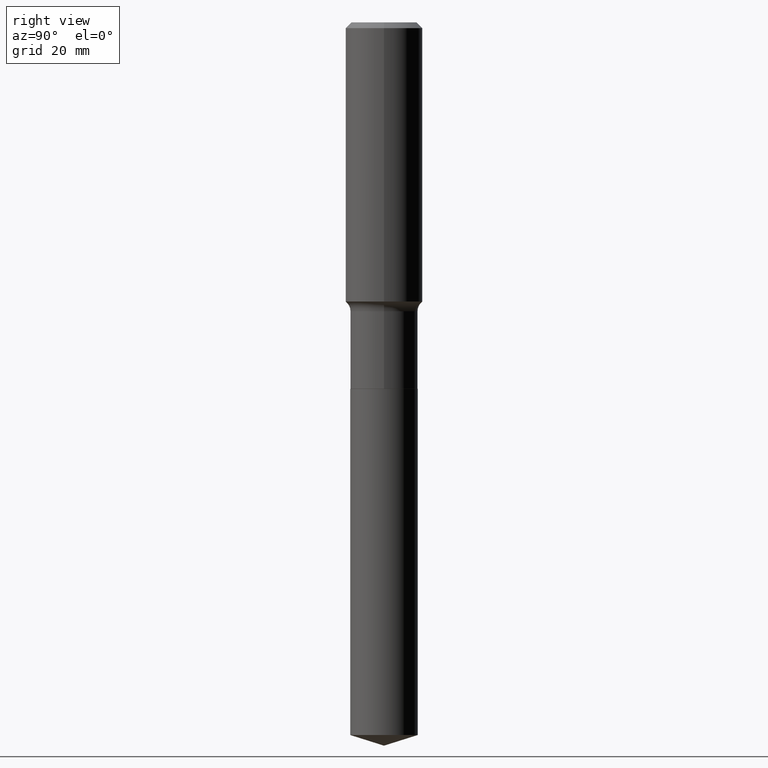
[diagram: clean part render]
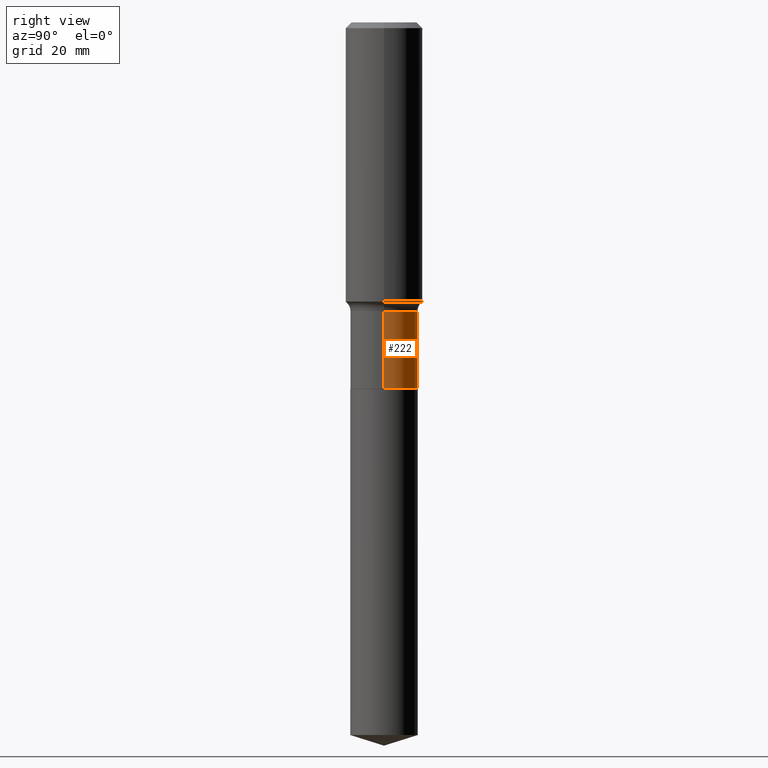
[diagram: same view with one face highlighted and labeled with its STEP entity id]
A machine part, right view. The second image highlights one B-rep face of the part: STEP entity #222.
In plain terms, the highlighted cylindrical surface (edge-blend (fillet) strip) has radius 5.5562 mm, axis along (-0, 0, 1).
Its self-contained STEP definition (entity closure, byte-faithful):
#13 = CARTESIAN_POINT ( 'NONE',  ( 0.2187499999999999445, -1.527523085743870449E-15, 1.066663669705360604E-29 ) ) ;
#21 = ORIENTED_EDGE ( 'NONE', *, *, #440, .F. ) ;
#48 = CIRCLE ( 'NONE', #360, 0.2187499999999999167 ) ;
#71 = LINE ( 'NONE', #303, #382 ) ;
#75 = VERTEX_POINT ( 'NONE', #167 ) ;
#78 = DIRECTION ( 'NONE',  ( -2.445468806185136877E-29, 3.491481338843145188E-15, 1.000000000000000000 ) ) ;
#91 = ORIENTED_EDGE ( 'NONE', *, *, #388, .T. ) ;
#117 = VECTOR ( 'NONE', #128, 39.37007874015748143 ) ;
#127 = VERTEX_POINT ( 'NONE', #323 ) ;
#128 = DIRECTION ( 'NONE',  ( -2.445468806185136877E-29, 3.491481338843145188E-15, 1.000000000000000000 ) ) ;
#130 = CIRCLE ( 'NONE', #457, 0.2187500000000000000 ) ;
#132 = EDGE_CURVE ( 'NONE', #310, #376, #48, .T. ) ;
#142 = DIRECTION ( 'NONE',  ( -2.445468806185136597E-29, 3.491481338843145583E-15, 1.000000000000000000 ) ) ;
#149 = DIRECTION ( 'NONE',  ( -2.445468806185136597E-29, 3.491481338843145583E-15, 1.000000000000000000 ) ) ;
#151 = CARTESIAN_POINT ( 'NONE',  ( 0.2187499999999999167, -8.063227003924354650E-15, -1.871900000000000341 ) ) ;
#167 = CARTESIAN_POINT ( 'NONE',  ( -0.2187500000000000000, -5.858800944156548632E-15, -2.374500000000000277 ) ) ;
#176 = DIRECTION ( 'NONE',  ( -2.445468806185136597E-29, 3.491481338843145583E-15, 1.000000000000000000 ) ) ;
#212 = DIRECTION ( 'NONE',  ( 1.000000000000000000, -6.982962677686265922E-15, 0.000000000000000000 ) ) ;
#222 = ADVANCED_FACE ( 'NONE', ( #477 ), #325, .T. ) ;
#233 = EDGE_LOOP ( 'NONE', ( #91, #398, #346, #21 ) ) ;
#250 = CARTESIAN_POINT ( 'NONE',  ( 0.000000000000000000, 0.000000000000000000, 0.000000000000000000 ) ) ;
#251 = AXIS2_PLACEMENT_3D ( 'NONE', #250, #176, #292 ) ;
#259 = CARTESIAN_POINT ( 'NONE',  ( -0.2187499999999999167, -5.858800944156548632E-15, -1.871900000000000341 ) ) ;
#292 = DIRECTION ( 'NONE',  ( 1.000000000000000000, -6.982962677686266711E-15, 4.876176775795935232E-29 ) ) ;
#303 = CARTESIAN_POINT ( 'NONE',  ( -0.2187499999999999445, 1.554312234475218762E-15, -1.076017050993260482E-29 ) ) ;
#310 = VERTEX_POINT ( 'NONE', #151 ) ;
#311 = LINE ( 'NONE', #13, #117 ) ;
#323 = CARTESIAN_POINT ( 'NONE',  ( 0.2187500000000000000, -9.818045524826919457E-15, -2.374500000000000277 ) ) ;
#325 = CYLINDRICAL_SURFACE ( 'NONE', #251, 0.2187499999999999445 ) ;
#328 = CARTESIAN_POINT ( 'NONE',  ( 4.577673058297957768E-29, -6.535703918180485385E-15, -1.871900000000000341 ) ) ;
#336 = EDGE_CURVE ( 'NONE', #75, #376, #71, .T. ) ;
#346 = ORIENTED_EDGE ( 'NONE', *, *, #132, .F. ) ;
#360 = AXIS2_PLACEMENT_3D ( 'NONE', #328, #142, #212 ) ;
#375 = CARTESIAN_POINT ( 'NONE',  ( 5.806765680286607737E-29, -8.290522439083049403E-15, -2.374500000000000277 ) ) ;
#376 = VERTEX_POINT ( 'NONE', #259 ) ;
#382 = VECTOR ( 'NONE', #78, 39.37007874015748143 ) ;
#388 = EDGE_CURVE ( 'NONE', #127, #75, #130, .T. ) ;
#398 = ORIENTED_EDGE ( 'NONE', *, *, #336, .T. ) ;
#440 = EDGE_CURVE ( 'NONE', #127, #310, #311, .T. ) ;
#457 = AXIS2_PLACEMENT_3D ( 'NONE', #375, #149, #485 ) ;
#477 = FACE_OUTER_BOUND ( 'NONE', #233, .T. ) ;
#485 = DIRECTION ( 'NONE',  ( 1.000000000000000000, -6.982962677686262766E-15, 0.000000000000000000 ) ) ;